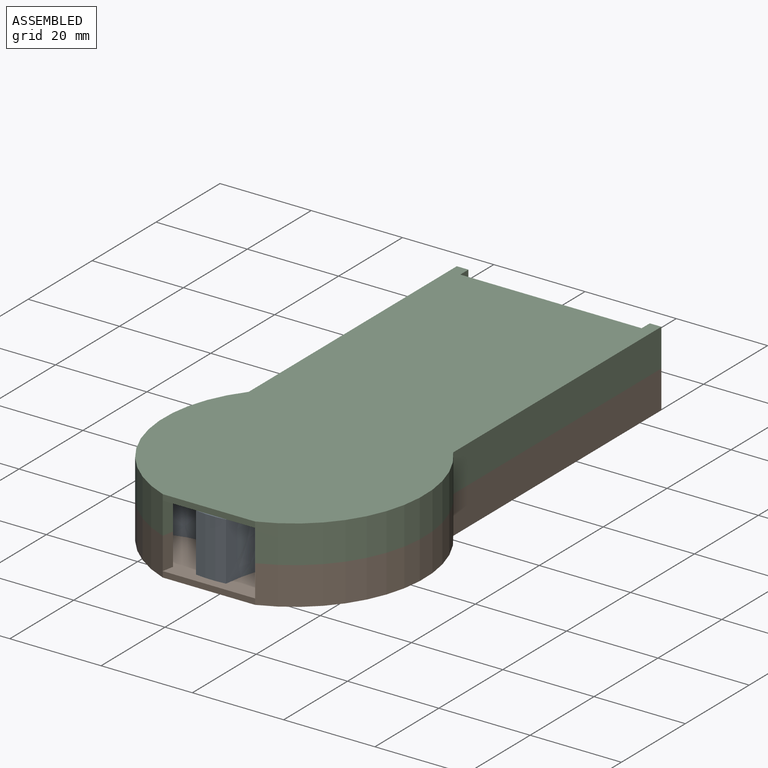
[diagram: assembled view]
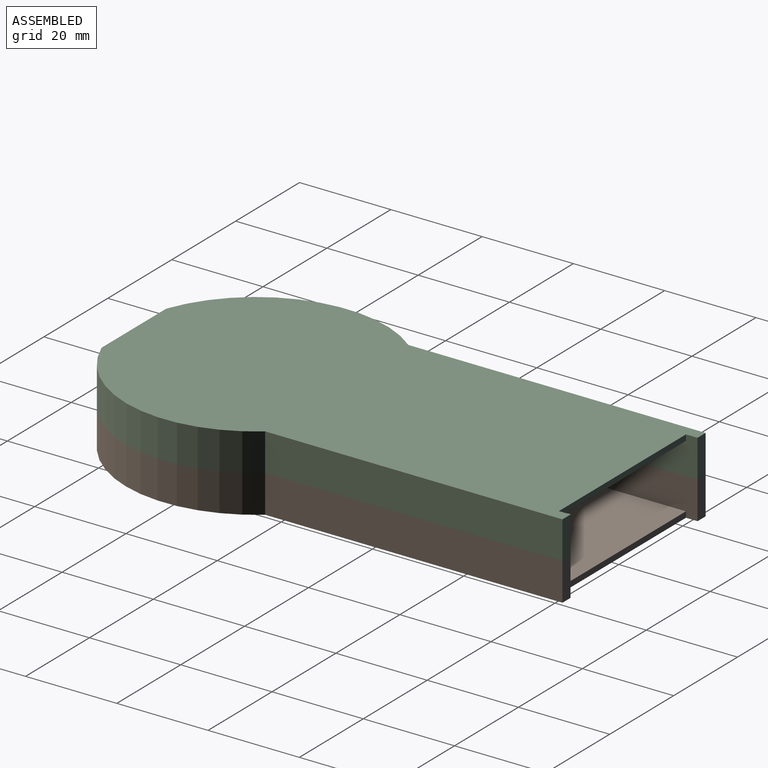
[diagram: assembled view, second angle]
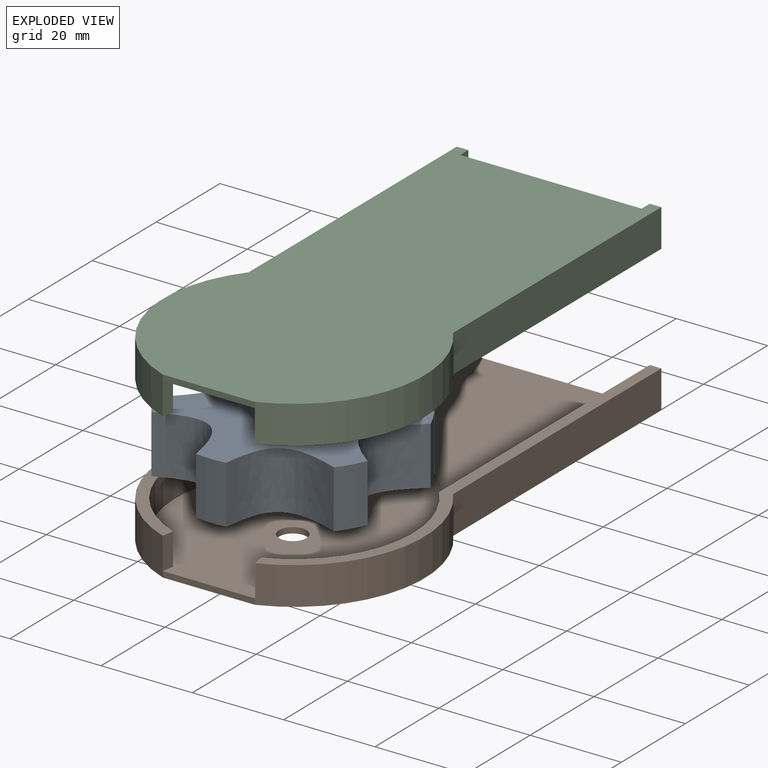
[diagram: exploded view]
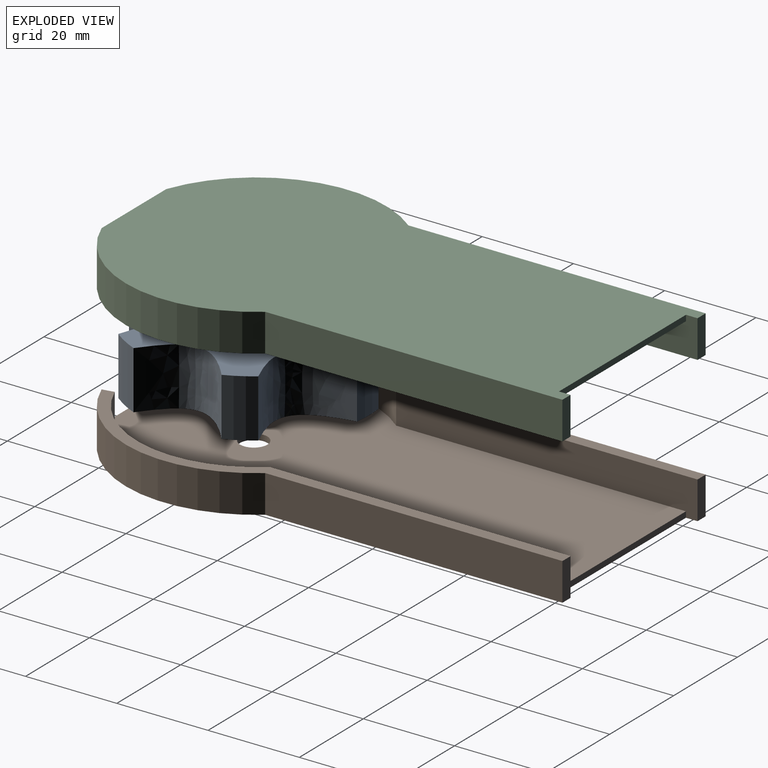
[diagram: exploded view, second angle]
ASSEMBLY  parts=3 mates=2
PART A: 15 faces, bbox 49.1x50.8x12.7 mm
  f0: cylinder r=25.4mm len=12.7mm, axis (0,0,-1), area 84.5mm2, adj f1,f3,f13,f14
  f1: extruded ~15.42x13.22mm, area 317.3mm2, adj f0,f12,f13,f14
  f2: cylinder r=25.4mm len=12.7mm, axis (0,0,-1), area 84.5mm2, adj f3,f5,f13,f14
  f3: extruded ~19.27x12.7mm, area 317.3mm2, adj f0,f2,f13,f14
  f4: cylinder r=25.4mm len=12.7mm, axis (0,0,-1), area 84.5mm2, adj f5,f7,f13,f14
  f5: extruded ~17.96x12.7mm, area 317.3mm2, adj f2,f4,f13,f14
  f6: cylinder r=25.4mm len=12.7mm, axis (0,0,-1), area 84.5mm2, adj f7,f9,f13,f14
  f7: extruded ~15.42x13.22mm, area 317.3mm2, adj f4,f6,f13,f14
  f8: cylinder r=25.4mm len=12.7mm, axis (0,0,-1), area 84.5mm2, adj f9,f10,f13,f14
  f9: extruded ~19.27x12.7mm, area 317.3mm2, adj f6,f8,f13,f14
  f10: extruded ~17.96x12.7mm, area 317.3mm2, adj f8,f12,f13,f14
  f11: cylinder r=1mm len=12.7mm, axis (0,0,-1), area 79.8mm2, adj f13,f14
  f12: cylinder r=25.4mm len=12.7mm, axis (0,0,-1), area 84.5mm2, adj f1,f10,f13,f14
  f13: plane 50.8x49.07mm, normal (0,0,1), area 1330.1mm2, adj f0,f1,f2,f3,f4,f5,f6,f7
  f14: plane 50.8x49.07mm, normal (0,0,-1), area 1330.1mm2, adj f0,f1,f2,f3,f4,f5,f6,f7
PART B: 19 faces, bbox 57.2x109.6x8.3 mm
  f0: plane 109.58x18.92mm, normal (0,0,-1), area 297.3mm2, adj f3,f4,f5,f6,f14,f15
  f1: plane 66.04x8.26mm, normal (-1,0,0), area 464.5mm2, adj f2,f10,f12,f13,f17,f18
  f2: plane 39.74x1.27mm, normal (0,1,0), area 50.5mm2, adj f1,f3,f12,f18
  f3: plane 66.04x8.26mm, normal (1,0,0), area 464.5mm2, adj f0,f2,f4,f12,f14,f18
  f4: plane 8.26x2.54mm, normal (0,1,0), area 21mm2, adj f0,f3,f5,f12
  f5: plane 65.13x8.26mm, normal (-1,0,0), area 537.7mm2, adj f0,f4,f6,f12
  f6: cylinder r=28.57mm len=44.45mm, axis (0,0,-1), area 442.9mm2, adj f0,f5,f7,f12,f15
  f7: plane 20.26x1.27mm, normal (0,-1,0), area 25.7mm2, adj f6,f8,f12,f18
  f8: cylinder r=28.57mm len=44.45mm, axis (0,0,-1), area 442.9mm2, adj f7,f9,f12,f13,f16
  f9: plane 65.13x8.26mm, normal (1,0,0), area 537.7mm2, adj f8,f10,f12,f13
  f10: plane 8.26x2.54mm, normal (0,1,0), area 21mm2, adj f1,f9,f12,f13
  f11: cylinder r=3mm len=6mm, axis (0,0,-1), area 23.9mm2, adj f12,f18
  f12: plane 109.58x57.15mm, normal (0,0,1), area 4991.4mm2, adj f1,f2,f3,f4,f5,f6,f7,f8
  f13: plane 109.58x18.92mm, normal (0,0,-1), area 297.3mm2, adj f1,f8,f9,f10,f16,f17
  f14: cylinder r=26.04mm len=41mm, axis (0,0,-1), area 344.3mm2, adj f0,f3,f15,f18
  f15: plane 6.99x2.54mm, normal (0.98,-0.18,0), area 18.1mm2, adj f0,f6,f14,f18
  f16: plane 6.99x2.54mm, normal (-0.98,-0.18,0), area 18.1mm2, adj f8,f13,f17,f18
  f17: cylinder r=26.04mm len=41mm, axis (0,0,-1), area 344.3mm2, adj f1,f13,f16,f18
  f18: plane 107.04x52.07mm, normal (0,0,-1), area 4396.7mm2, adj f1,f2,f3,f7,f11,f14,f15,f16
PART C: 18 faces, bbox 57.2x109.6x8.3 mm
  f0: plane 109.58x18.92mm, normal (0,0,-1), area 297.3mm2, adj f7,f8,f9,f10,f15,f16
  f1: plane 39.74x1.27mm, normal (0,1,0), area 50.5mm2, adj f2,f10,f11,f17
  f2: plane 66.04x8.26mm, normal (1,0,0), area 464.5mm2, adj f1,f3,f11,f12,f13,f17
  f3: plane 8.26x2.54mm, normal (0,1,0), area 21mm2, adj f2,f4,f11,f12
  f4: plane 65.13x8.26mm, normal (-1,0,0), area 537.7mm2, adj f3,f5,f11,f12
  f5: cylinder r=28.57mm len=44.45mm, axis (0,0,-1), area 442.9mm2, adj f4,f6,f11,f12,f14
  f6: plane 20.26x1.27mm, normal (0,-1,0), area 25.7mm2, adj f5,f7,f11,f17
  f7: cylinder r=28.57mm len=44.45mm, axis (0,0,-1), area 442.9mm2, adj f0,f6,f8,f11,f15
  f8: plane 65.13x8.26mm, normal (1,0,0), area 537.7mm2, adj f0,f7,f9,f11
  f9: plane 8.26x2.54mm, normal (0,1,0), area 21mm2, adj f0,f8,f10,f11
  f10: plane 66.04x8.26mm, normal (-1,0,0), area 464.5mm2, adj f0,f1,f9,f11,f16,f17
  f11: plane 109.58x57.15mm, normal (0,0,1), area 5019.7mm2, adj f1,f2,f3,f4,f5,f6,f7,f8
  f12: plane 109.58x18.92mm, normal (0,0,-1), area 297.3mm2, adj f2,f3,f4,f5,f13,f14
  f13: cylinder r=26.04mm len=41mm, axis (0,0,-1), area 344.3mm2, adj f2,f12,f14,f17
  f14: plane 6.99x2.54mm, normal (0.98,-0.18,0), area 18.1mm2, adj f5,f12,f13,f17
  f15: plane 6.99x2.54mm, normal (-0.98,-0.18,0), area 18.1mm2, adj f0,f7,f16,f17
  f16: cylinder r=26.04mm len=41mm, axis (0,0,-1), area 344.3mm2, adj f0,f10,f15,f17
  f17: plane 107.04x52.07mm, normal (0,0,-1), area 4425mm2, adj f1,f2,f6,f10,f13,f14,f15,f16
PLACE A rot(axis=(0.83,0.55,0),180deg) t=(0,0,13.33)mm
PLACE B rot(axis=(0,1,0),180deg) t=(0,0.47,6.99)mm
PLACE C rot(axis=(0,1,0.06),0deg) t=(21.8,10.23,6.99)mm
MATE revolute A.f0 <-> B.f11  axis (0,0,-1) through (0,0,0.63)mm
MATE fastened C.f0 <-> B.f0  axis (0,0,-1) through (21.82,25.89,6.99)mm
